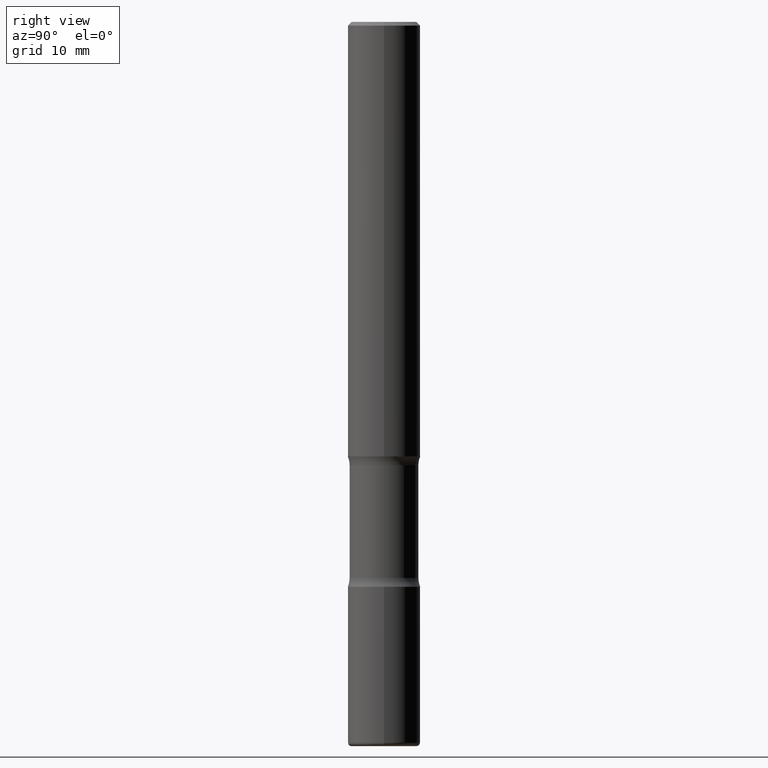
[diagram: clean part render]
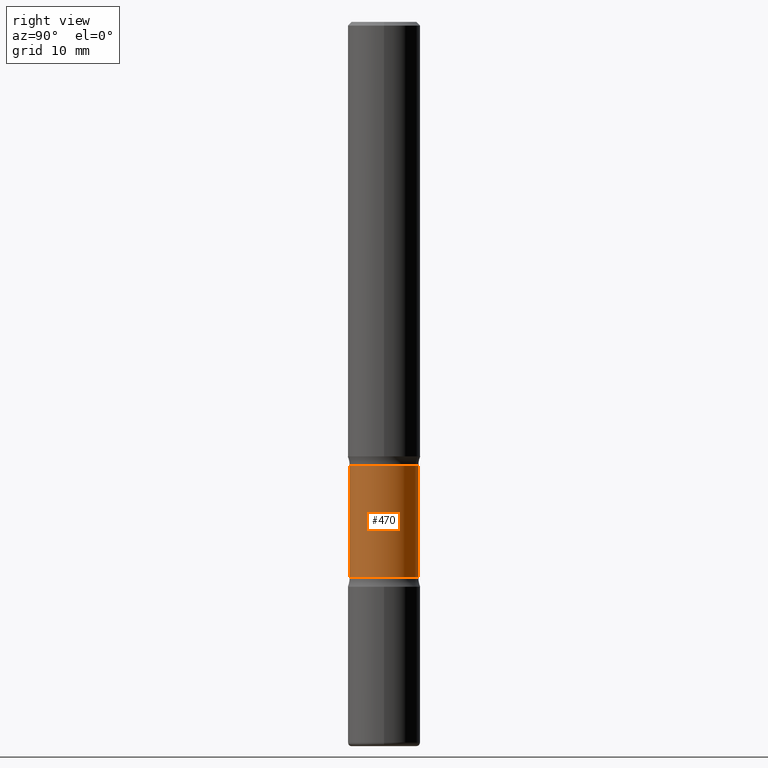
[diagram: same view with one face highlighted and labeled with its STEP entity id]
A machine part, right view. The second image highlights one B-rep face of the part: STEP entity #470.
In plain terms, the highlighted cylindrical surface (edge-blend (fillet) strip) has radius 4.7498 mm, axis along (0, -0, -1).
Its self-contained STEP definition (entity closure, byte-faithful):
#10 = EDGE_CURVE ( 'NONE', #191, #338, #199, .T. ) ;
#12 = VERTEX_POINT ( 'NONE', #237 ) ;
#24 = EDGE_CURVE ( 'NONE', #368, #191, #263, .T. ) ;
#38 = CYLINDRICAL_SURFACE ( 'NONE', #241, 0.1870000000000000828 ) ;
#41 = CARTESIAN_POINT ( 'NONE',  ( 1.305814020727429425E-15, 0.1869999999999864548, -3.937000000000000721 ) ) ;
#73 = DIRECTION ( 'NONE',  ( 2.540626945080028130E-29, -3.355209467880745729E-15, -1.000000000000000000 ) ) ;
#78 = DIRECTION ( 'NONE',  ( 2.540626945080028130E-29, -3.355209467880746123E-15, -1.000000000000000000 ) ) ;
#89 = VECTOR ( 'NONE', #73, 39.37007874015748143 ) ;
#94 = ORIENTED_EDGE ( 'NONE', *, *, #10, .T. ) ;
#108 = EDGE_LOOP ( 'NONE', ( #281, #94, #409, #115 ) ) ;
#115 = ORIENTED_EDGE ( 'NONE', *, *, #433, .F. ) ;
#128 = CARTESIAN_POINT ( 'NONE',  ( 1.305814020727390771E-15, 0.1869999999999916174, -2.410836174808470567 ) ) ;
#150 = CARTESIAN_POINT ( 'NONE',  ( -1.316701078222244837E-15, -0.1870000000000086315, -2.410836174808469679 ) ) ;
#157 = DIRECTION ( 'NONE',  ( 6.982962677686266711E-15, 1.000000000000000000, -2.921762560068729806E-15 ) ) ;
#172 = CARTESIAN_POINT ( 'NONE',  ( -1.316701078222226890E-15, -0.1870000000000106022, -3.022263825191529918 ) ) ;
#176 = VECTOR ( 'NONE', #377, 39.37007874015748143 ) ;
#191 = VERTEX_POINT ( 'NONE', #150 ) ;
#199 = LINE ( 'NONE', #456, #89 ) ;
#237 = CARTESIAN_POINT ( 'NONE',  ( 1.305814020727405957E-15, 0.1869999999999895079, -3.022263825191530806 ) ) ;
#241 = AXIS2_PLACEMENT_3D ( 'NONE', #374, #502, #464 ) ;
#243 = DIRECTION ( 'NONE',  ( 6.982962677686266711E-15, 1.000000000000000000, -2.921762560068729017E-15 ) ) ;
#263 = CIRCLE ( 'NONE', #313, 0.1870000000000001106 ) ;
#281 = ORIENTED_EDGE ( 'NONE', *, *, #24, .T. ) ;
#283 = EDGE_CURVE ( 'NONE', #12, #338, #430, .T. ) ;
#284 = CARTESIAN_POINT ( 'NONE',  ( 5.832814217159742143E-29, -8.507337647765213396E-15, -2.410836174808470123 ) ) ;
#313 = AXIS2_PLACEMENT_3D ( 'NONE', #284, #78, #243 ) ;
#325 = DIRECTION ( 'NONE',  ( 2.540626945080028130E-29, -3.355209467880746123E-15, -1.000000000000000000 ) ) ;
#338 = VERTEX_POINT ( 'NONE', #172 ) ;
#368 = VERTEX_POINT ( 'NONE', #128 ) ;
#374 = CARTESIAN_POINT ( 'NONE',  ( 9.710227154047748282E-29, -1.362793696358492956E-14, -3.937000000000000277 ) ) ;
#377 = DIRECTION ( 'NONE',  ( 2.540626945080028130E-29, -3.355209467880745729E-15, -1.000000000000000000 ) ) ;
#395 = AXIS2_PLACEMENT_3D ( 'NONE', #551, #325, #157 ) ;
#409 = ORIENTED_EDGE ( 'NONE', *, *, #283, .F. ) ;
#430 = CIRCLE ( 'NONE', #395, 0.1870000000000000551 ) ;
#433 = EDGE_CURVE ( 'NONE', #368, #12, #557, .T. ) ;
#456 = CARTESIAN_POINT ( 'NONE',  ( -1.282913125583179628E-15, -0.1870000000000137108, -3.936999999999999389 ) ) ;
#464 = DIRECTION ( 'NONE',  ( 6.982962677686266711E-15, 1.000000000000000000, -2.921762560068729411E-15 ) ) ;
#470 = ADVANCED_FACE ( 'NONE', ( #491 ), #38, .T. ) ;
#491 = FACE_OUTER_BOUND ( 'NONE', #108, .T. ) ;
#502 = DIRECTION ( 'NONE',  ( 2.540626945080028130E-29, -3.355209467880746123E-15, -1.000000000000000000 ) ) ;
#551 = CARTESIAN_POINT ( 'NONE',  ( 7.386223780689915972E-29, -1.055880548925453445E-14, -3.022263825191530362 ) ) ;
#557 = LINE ( 'NONE', #41, #176 ) ;